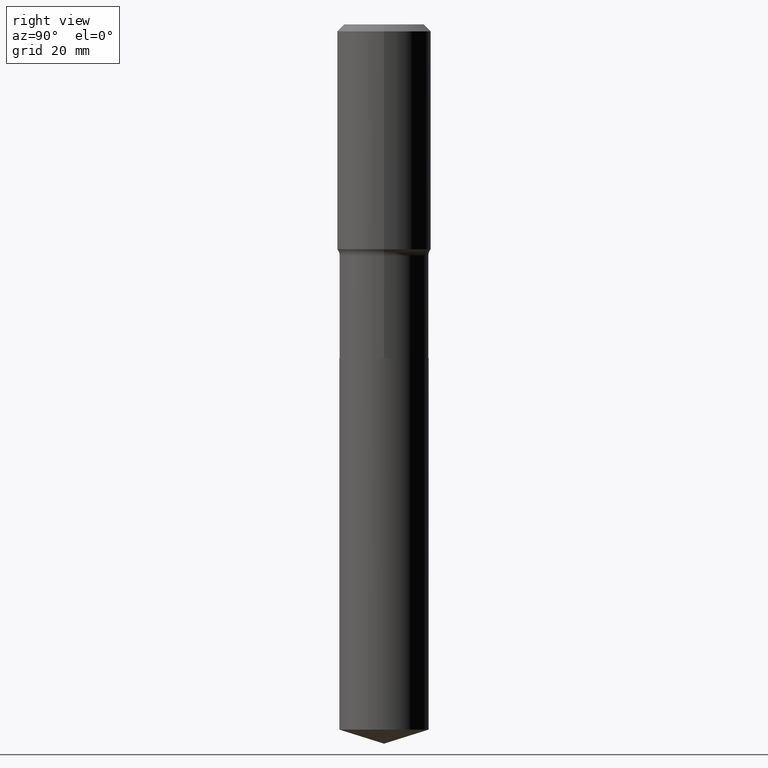
[diagram: clean part render]
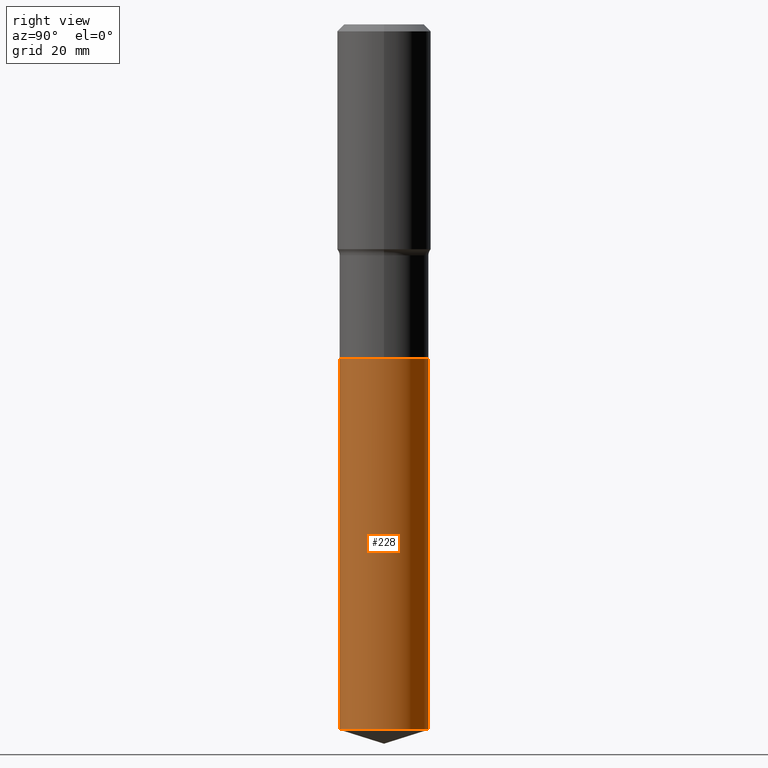
[diagram: same view with one face highlighted and labeled with its STEP entity id]
A machine part, right view. The second image highlights one B-rep face of the part: STEP entity #228.
In plain terms, the highlighted cylindrical surface (partial cylindrical patch) has radius 9.4996 mm, axis along (-0, 0, 1).
Its self-contained STEP definition (entity closure, byte-faithful):
#41 = EDGE_CURVE ( 'NONE', #199, #149, #345, .T. ) ;
#43 = DIRECTION ( 'NONE',  ( -6.982962677686266711E-15, -1.000000000000000000, 2.921762560068730595E-15 ) ) ;
#78 = LINE ( 'NONE', #490, #407 ) ;
#84 = LINE ( 'NONE', #86, #101 ) ;
#86 = CARTESIAN_POINT ( 'NONE',  ( 2.657429831742842925E-15, 0.3739999999999902847, -2.795200000000000795 ) ) ;
#89 = EDGE_LOOP ( 'NONE', ( #309, #164, #359, #131 ) ) ;
#101 = VECTOR ( 'NONE', #227, 39.37007874015748143 ) ;
#107 = DIRECTION ( 'NONE',  ( -6.982962677686266711E-15, -1.000000000000000000, 2.921762560068730595E-15 ) ) ;
#110 = DIRECTION ( 'NONE',  ( -2.445122506126892238E-29, 3.491977260236726603E-15, 1.000000000000000000 ) ) ;
#117 = EDGE_CURVE ( 'NONE', #199, #168, #78, .T. ) ;
#120 = CARTESIAN_POINT ( 'NONE',  ( 6.835574407048694043E-29, -9.759388638334360093E-15, -2.795199999999999907 ) ) ;
#131 = ORIENTED_EDGE ( 'NONE', *, *, #117, .F. ) ;
#135 = EDGE_CURVE ( 'NONE', #149, #369, #84, .T. ) ;
#146 = AXIS2_PLACEMENT_3D ( 'NONE', #120, #262, #43 ) ;
#149 = VERTEX_POINT ( 'NONE', #162 ) ;
#162 = CARTESIAN_POINT ( 'NONE',  ( 2.657429831742921023E-15, 0.3739999999999796265, -5.905678252959261521 ) ) ;
#164 = ORIENTED_EDGE ( 'NONE', *, *, #135, .T. ) ;
#168 = VERTEX_POINT ( 'NONE', #213 ) ;
#176 = AXIS2_PLACEMENT_3D ( 'NONE', #333, #110, #177 ) ;
#177 = DIRECTION ( 'NONE',  ( -6.982962677686266711E-15, -1.000000000000000000, 2.921762560068730595E-15 ) ) ;
#199 = VERTEX_POINT ( 'NONE', #409 ) ;
#208 = CARTESIAN_POINT ( 'NONE',  ( 6.835574407048694043E-29, -9.759388638334360093E-15, -2.795199999999999907 ) ) ;
#213 = CARTESIAN_POINT ( 'NONE',  ( -2.611628041454595371E-15, -0.3740000000000097691, -2.795199999999998575 ) ) ;
#227 = DIRECTION ( 'NONE',  ( -2.445122506126892238E-29, 3.491977260236726997E-15, 1.000000000000000000 ) ) ;
#228 = ADVANCED_FACE ( 'NONE', ( #382 ), #492, .T. ) ;
#262 = DIRECTION ( 'NONE',  ( -2.445122506126892238E-29, 3.491977260236726603E-15, 1.000000000000000000 ) ) ;
#271 = CARTESIAN_POINT ( 'NONE',  ( 2.657429831742919050E-15, 0.3739999999999902847, -2.795200000000000795 ) ) ;
#279 = DIRECTION ( 'NONE',  ( -2.445122506126892238E-29, 3.491977260236726603E-15, 1.000000000000000000 ) ) ;
#283 = EDGE_CURVE ( 'NONE', #168, #369, #401, .T. ) ;
#309 = ORIENTED_EDGE ( 'NONE', *, *, #41, .T. ) ;
#333 = CARTESIAN_POINT ( 'NONE',  ( 1.444107478817764041E-28, -2.062110796612896083E-14, -5.905678252959260632 ) ) ;
#335 = AXIS2_PLACEMENT_3D ( 'NONE', #208, #279, #107 ) ;
#337 = DIRECTION ( 'NONE',  ( -2.445122506126892238E-29, 3.491977260236726997E-15, 1.000000000000000000 ) ) ;
#345 = CIRCLE ( 'NONE', #176, 0.3739999999999999991 ) ;
#359 = ORIENTED_EDGE ( 'NONE', *, *, #283, .F. ) ;
#369 = VERTEX_POINT ( 'NONE', #271 ) ;
#382 = FACE_OUTER_BOUND ( 'NONE', #89, .T. ) ;
#401 = CIRCLE ( 'NONE', #335, 0.3739999999999999991 ) ;
#407 = VECTOR ( 'NONE', #337, 39.37007874015748143 ) ;
#409 = CARTESIAN_POINT ( 'NONE',  ( -2.611628041454520429E-15, -0.3740000000000208713, -5.905678252959259744 ) ) ;
#490 = CARTESIAN_POINT ( 'NONE',  ( -2.611628041454595371E-15, -0.3740000000000097691, -2.795199999999998575 ) ) ;
#492 = CYLINDRICAL_SURFACE ( 'NONE', #146, 0.3739999999999999991 ) ;